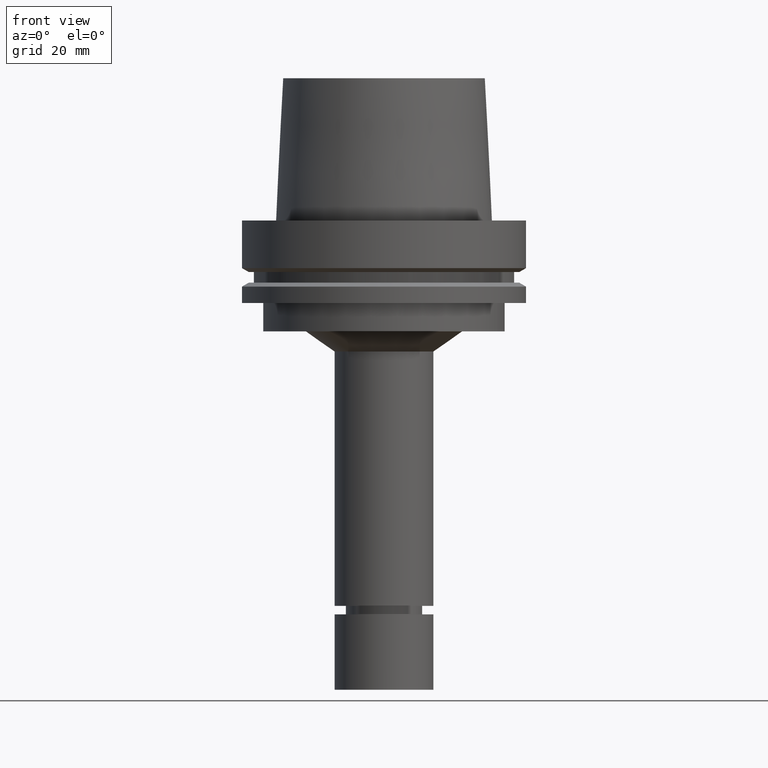
[diagram: clean part render]
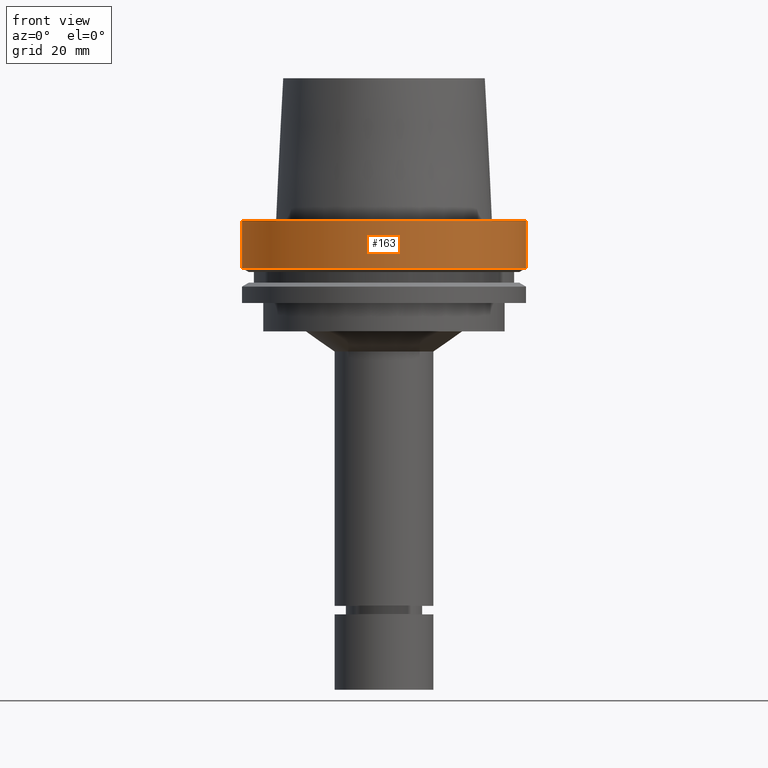
[diagram: same view with one face highlighted and labeled with its STEP entity id]
A machine part, front view. The second image highlights one B-rep face of the part: STEP entity #163.
In plain terms, the highlighted cylindrical surface (bore or boss wall) has radius 50 mm, axis along (0, 0, -1).
Its self-contained STEP definition (entity closure, byte-faithful):
#138=EDGE_CURVE('Unnamed[1]',#308,#308,#309,.T.);
#163=ADVANCED_FACE('Unnamed[1]',(#346,#347),#348,.T.);
#192=EDGE_CURVE('Unnamed[1]',#393,#393,#394,.T.);
#308=VERTEX_POINT('',#528);
#309=CIRCLE('',#529,50.0);
#346=FACE_BOUND('',#576,.T.);
#347=FACE_BOUND('',#577,.T.);
#348=CYLINDRICAL_SURFACE('',#578,50.0);
#393=VERTEX_POINT('',#634);
#394=CIRCLE('',#635,50.0);
#528=CARTESIAN_POINT('',(1.0257889421431E-015,50.0,-16.75240474));
#529=AXIS2_PLACEMENT_3D('',#748,#749,#750);
#576=EDGE_LOOP('',(#790));
#577=EDGE_LOOP('',(#791));
#578=AXIS2_PLACEMENT_3D('',#792,#793,#794);
#634=CARTESIAN_POINT('',(-1.81547968506605E-031,50.0,-9.76766004263236E-016));
#635=AXIS2_PLACEMENT_3D('',#845,#846,#847);
#748=CARTESIAN_POINT('',(1.0257889421431E-015,2.05157788428619E-015,-16.75240474));
#749=DIRECTION('',(6.12323399573677E-017,1.22464679914735E-016,-1.0));
#750=DIRECTION('',(-1.23259516440783E-032,1.0,1.22464679914735E-016));
#790=ORIENTED_EDGE('',*,*,#138,.F.);
#791=ORIENTED_EDGE('',*,*,#192,.T.);
#792=CARTESIAN_POINT('',(5.12894471071548E-016,1.0257889421431E-015,-8.37620236999999));
#793=DIRECTION('',(6.12323399573677E-017,1.22464679914735E-016,-1.0));
#794=DIRECTION('',(-1.23259516440783E-032,1.0,1.22464679914735E-016));
#845=CARTESIAN_POINT('',(0.0,0.0,0.0));
#846=DIRECTION('',(6.12323399573677E-017,1.22464679914735E-016,-1.0));
#847=DIRECTION('',(-1.23259516440783E-032,1.0,1.22464679914735E-016));